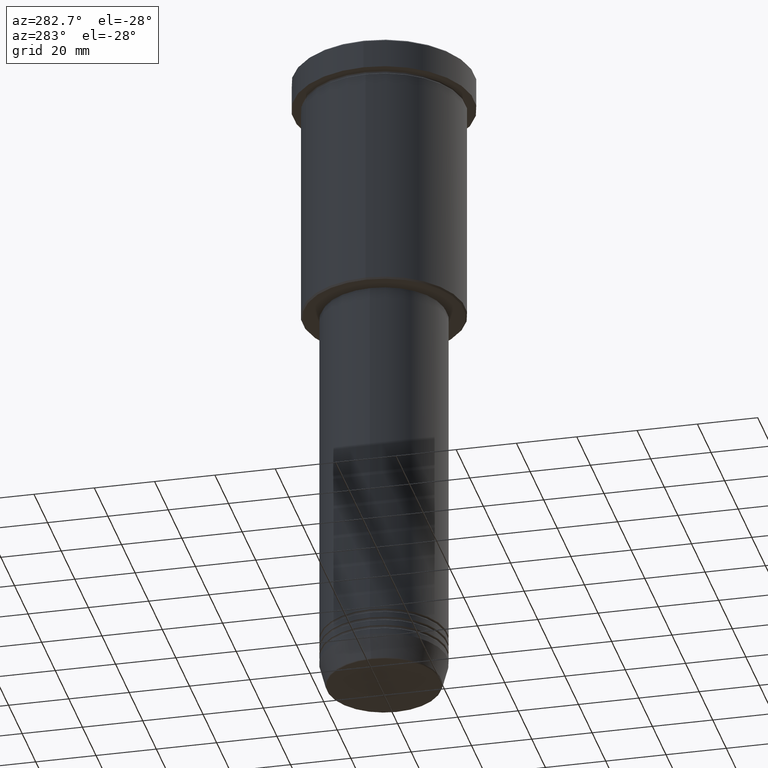
[diagram: clean part render]
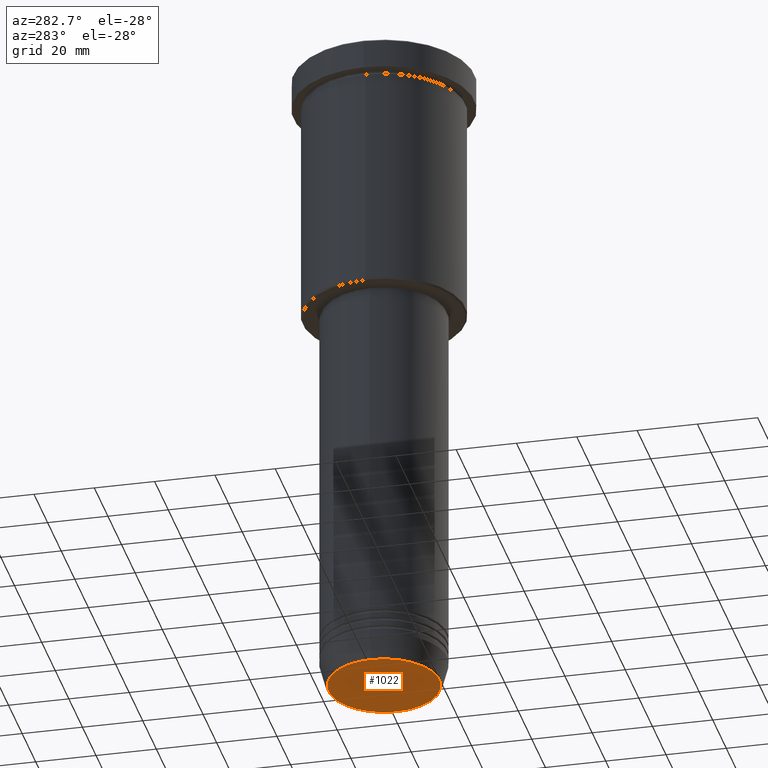
[diagram: same view with one face highlighted and labeled with its STEP entity id]
A machine part, auxiliary view. The second image highlights one B-rep face of the part: STEP entity #1022.
In plain terms, the highlighted planar face has unit normal (0, -0, 1).
Its self-contained STEP definition (entity closure, byte-faithful):
#75 = CARTESIAN_POINT ( 'NONE',  ( -18.47274296656154391, 2.291831503831604046E-15, -220.9999999999999716 ) ) ;
#109 = AXIS2_PLACEMENT_3D ( 'NONE', #507, #354, #691 ) ;
#173 = AXIS2_PLACEMENT_3D ( 'NONE', #639, #290, #826 ) ;
#175 = FACE_OUTER_BOUND ( 'NONE', #847, .T. ) ;
#223 = CIRCLE ( 'NONE', #109, 18.47274296656154391 ) ;
#290 = DIRECTION ( 'NONE',  ( 0.000000000000000000, -0.000000000000000000, 1.000000000000000000 ) ) ;
#354 = DIRECTION ( 'NONE',  ( 0.000000000000000000, 0.000000000000000000, -1.000000000000000000 ) ) ;
#428 = EDGE_CURVE ( 'NONE', #941, #1125, #437, .T. ) ;
#437 = CIRCLE ( 'NONE', #626, 18.47274296656154391 ) ;
#507 = CARTESIAN_POINT ( 'NONE',  ( 0.000000000000000000, 0.000000000000000000, -220.9999999999999716 ) ) ;
#518 = ORIENTED_EDGE ( 'NONE', *, *, #961, .T. ) ;
#532 = ORIENTED_EDGE ( 'NONE', *, *, #428, .T. ) ;
#536 = PLANE ( 'NONE',  #173 ) ;
#626 = AXIS2_PLACEMENT_3D ( 'NONE', #905, #732, #638 ) ;
#638 = DIRECTION ( 'NONE',  ( 1.000000000000000000, 0.000000000000000000, 0.000000000000000000 ) ) ;
#639 = CARTESIAN_POINT ( 'NONE',  ( 0.000000000000000000, 0.000000000000000000, -220.9999999999999716 ) ) ;
#691 = DIRECTION ( 'NONE',  ( 1.000000000000000000, 0.000000000000000000, 0.000000000000000000 ) ) ;
#732 = DIRECTION ( 'NONE',  ( 0.000000000000000000, 0.000000000000000000, -1.000000000000000000 ) ) ;
#734 = CARTESIAN_POINT ( 'NONE',  ( 18.47274296656154391, 0.000000000000000000, -220.9999999999999716 ) ) ;
#826 = DIRECTION ( 'NONE',  ( 1.000000000000000000, 0.000000000000000000, 0.000000000000000000 ) ) ;
#847 = EDGE_LOOP ( 'NONE', ( #518, #532 ) ) ;
#905 = CARTESIAN_POINT ( 'NONE',  ( 0.000000000000000000, 0.000000000000000000, -220.9999999999999716 ) ) ;
#941 = VERTEX_POINT ( 'NONE', #75 ) ;
#961 = EDGE_CURVE ( 'NONE', #1125, #941, #223, .T. ) ;
#1022 = ADVANCED_FACE ( 'NONE', ( #175 ), #536, .F. ) ;
#1125 = VERTEX_POINT ( 'NONE', #734 ) ;